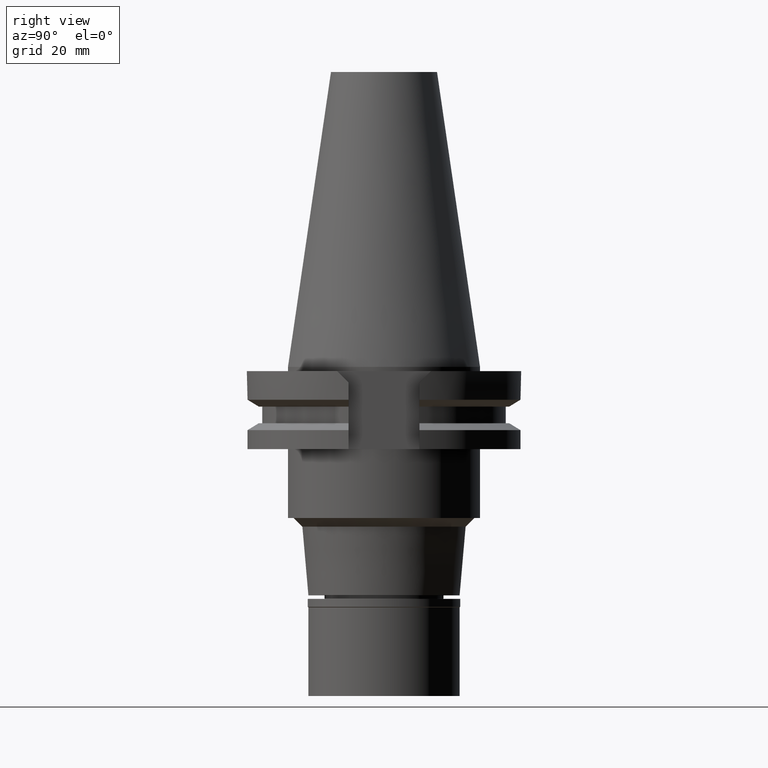
[diagram: clean part render]
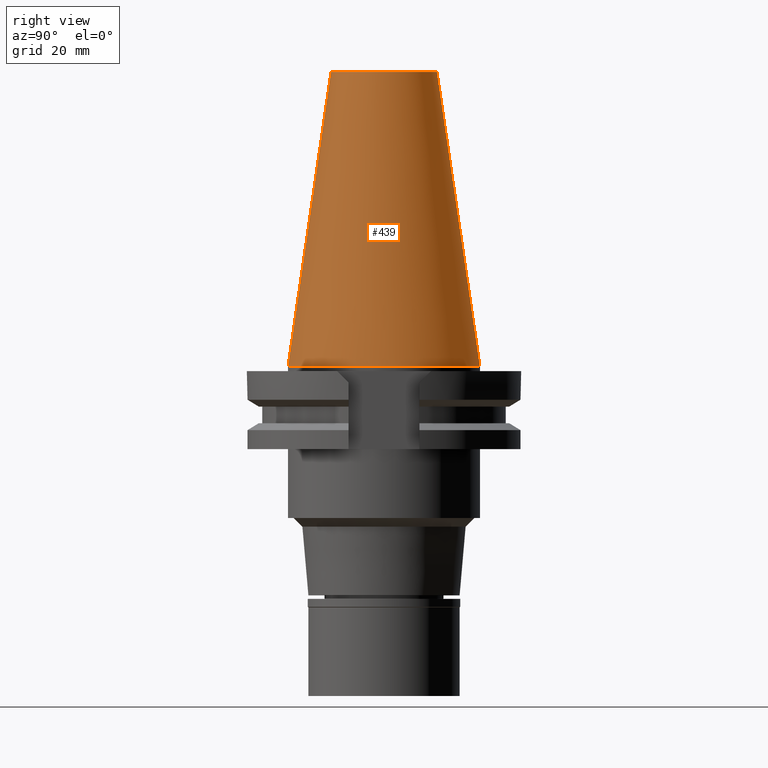
[diagram: same view with one face highlighted and labeled with its STEP entity id]
A machine part, right view. The second image highlights one B-rep face of the part: STEP entity #439.
In plain terms, the highlighted conical surface has half-angle 8.297 deg.
Its self-contained STEP definition (entity closure, byte-faithful):
#116 = CIRCLE ( 'NONE', #448, 12.27186888070000137 ) ;
#173 = VECTOR ( 'NONE', #415, 1000.000000000000114 ) ;
#375 = EDGE_CURVE ( 'NONE', #3053, #2364, #116, .T. ) ;
#396 = ORIENTED_EDGE ( 'NONE', *, *, #2360, .F. ) ;
#408 = DIRECTION ( 'NONE',  ( 0.0000000000000000000, 0.0000000000000000000, -1.000000000000000000 ) ) ;
#409 = VERTEX_POINT ( 'NONE', #2249 ) ;
#415 = DIRECTION ( 'NONE',  ( 0.0000000000000000000, -0.1443069799456937474, -0.9895329683941577192 ) ) ;
#439 = ADVANCED_FACE ( 'NONE', ( #922 ), #1044, .T. ) ;
#448 = AXIS2_PLACEMENT_3D ( 'NONE', #1762, #408, #1435 ) ;
#549 = CARTESIAN_POINT ( 'NONE',  ( 0.0000000000000000000, 12.27186888070000137, 68.25000000000000000 ) ) ;
#590 = EDGE_CURVE ( 'NONE', #2364, #1807, #1790, .T. ) ;
#743 = CARTESIAN_POINT ( 'NONE',  ( 0.0000000000000000000, -12.27186888070000137, 68.25000000000000000 ) ) ;
#830 = CARTESIAN_POINT ( 'NONE',  ( 0.0000000000000000000, -22.22500000000000142, -2.060573933703999733E-13 ) ) ;
#833 = ORIENTED_EDGE ( 'NONE', *, *, #3064, .F. ) ;
#834 = AXIS2_PLACEMENT_3D ( 'NONE', #3009, #1980, #2766 ) ;
#922 = FACE_OUTER_BOUND ( 'NONE', #2562, .T. ) ;
#1010 = LINE ( 'NONE', #1837, #3092 ) ;
#1044 = CONICAL_SURFACE ( 'NONE', #834, 17.24843444035000317, 0.1448125860318199565 ) ;
#1226 = CIRCLE ( 'NONE', #1622, 22.22500000000000142 ) ;
#1435 = DIRECTION ( 'NONE',  ( 0.0000000000000000000, 1.000000000000000000, 0.0000000000000000000 ) ) ;
#1622 = AXIS2_PLACEMENT_3D ( 'NONE', #2796, #2282, #2226 ) ;
#1762 = CARTESIAN_POINT ( 'NONE',  ( 0.0000000000000000000, 1.642557519355999895E-14, 68.25000000000000000 ) ) ;
#1790 = LINE ( 'NONE', #743, #173 ) ;
#1807 = VERTEX_POINT ( 'NONE', #830 ) ;
#1837 = CARTESIAN_POINT ( 'NONE',  ( 0.0000000000000000000, 12.27186888070000137, 68.25000000000000000 ) ) ;
#1980 = DIRECTION ( 'NONE',  ( 0.0000000000000000000, 0.0000000000000000000, -1.000000000000000000 ) ) ;
#2226 = DIRECTION ( 'NONE',  ( 0.0000000000000000000, 1.000000000000000000, 0.0000000000000000000 ) ) ;
#2249 = CARTESIAN_POINT ( 'NONE',  ( 0.0000000000000000000, 22.22500000000000142, -2.060573933703999733E-13 ) ) ;
#2282 = DIRECTION ( 'NONE',  ( 0.0000000000000000000, 0.0000000000000000000, -1.000000000000000000 ) ) ;
#2360 = EDGE_CURVE ( 'NONE', #409, #1807, #1226, .T. ) ;
#2364 = VERTEX_POINT ( 'NONE', #2507 ) ;
#2366 = DIRECTION ( 'NONE',  ( 0.0000000000000000000, 0.1443069799456937474, -0.9895329683941577192 ) ) ;
#2507 = CARTESIAN_POINT ( 'NONE',  ( 0.0000000000000000000, -12.27186888070000137, 68.25000000000000000 ) ) ;
#2562 = EDGE_LOOP ( 'NONE', ( #3305, #2881, #396, #833 ) ) ;
#2766 = DIRECTION ( 'NONE',  ( 0.0000000000000000000, -1.000000000000000000, 0.0000000000000000000 ) ) ;
#2796 = CARTESIAN_POINT ( 'NONE',  ( 0.0000000000000000000, 1.642557519355999895E-14, -3.126388037344000570E-13 ) ) ;
#2881 = ORIENTED_EDGE ( 'NONE', *, *, #590, .T. ) ;
#3009 = CARTESIAN_POINT ( 'NONE',  ( 0.0000000000000000000, 1.642557519355999895E-14, 34.12500000000000000 ) ) ;
#3053 = VERTEX_POINT ( 'NONE', #549 ) ;
#3064 = EDGE_CURVE ( 'NONE', #3053, #409, #1010, .T. ) ;
#3092 = VECTOR ( 'NONE', #2366, 1000.000000000000114 ) ;
#3305 = ORIENTED_EDGE ( 'NONE', *, *, #375, .T. ) ;